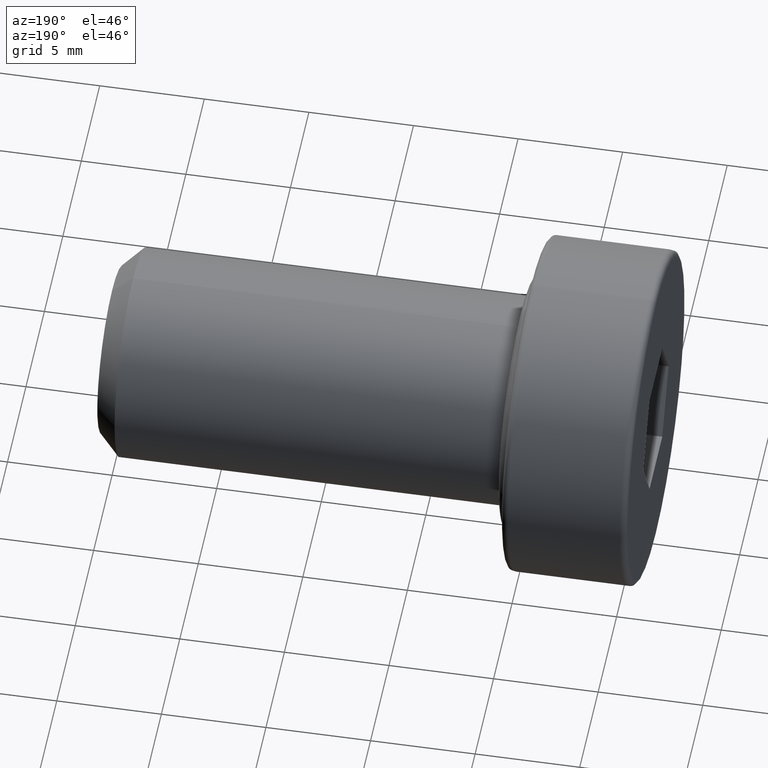
[diagram: clean part render]
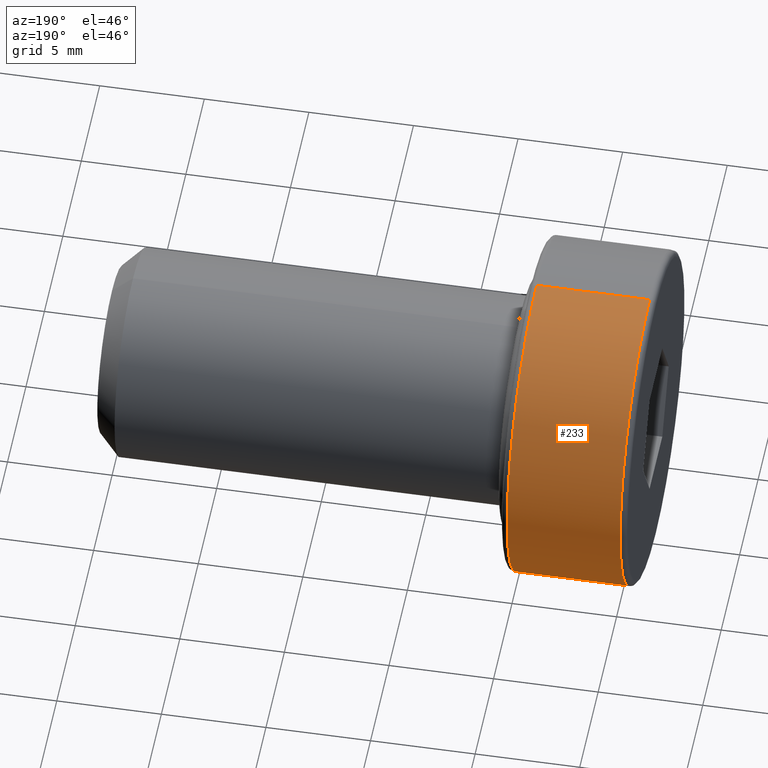
[diagram: same view with one face highlighted and labeled with its STEP entity id]
A machine part, auxiliary view. The second image highlights one B-rep face of the part: STEP entity #233.
In plain terms, the highlighted cylindrical surface (partial cylindrical patch) has radius 8 mm, axis along (1, 0, 0).
Its self-contained STEP definition (entity closure, byte-faithful):
#3 = AXIS2_PLACEMENT_3D ( 'NONE', #296, #431, #243 ) ;
#14 = EDGE_CURVE ( 'NONE', #605, #250, #246, .T. ) ;
#61 = EDGE_LOOP ( 'NONE', ( #397, #714, #544, #568 ) ) ;
#85 = CARTESIAN_POINT ( 'NONE',  ( -0.2999999999999999300, 0.0000000000000000000, -8.000000000000000000 ) ) ;
#106 = CYLINDRICAL_SURFACE ( 'NONE', #390, 8.000000000000000000 ) ;
#148 = CARTESIAN_POINT ( 'NONE',  ( -5.700000000000000200, 9.797174393178825700E-016, 8.000000000000000000 ) ) ;
#159 = EDGE_CURVE ( 'NONE', #300, #605, #348, .T. ) ;
#197 = EDGE_CURVE ( 'NONE', #300, #807, #625, .T. ) ;
#233 = ADVANCED_FACE ( 'NONE', ( #609 ), #106, .T. ) ;
#240 = EDGE_CURVE ( 'NONE', #250, #807, #443, .T. ) ;
#243 = DIRECTION ( 'NONE',  ( 0.0000000000000000000, 0.0000000000000000000, -1.000000000000000000 ) ) ;
#246 = LINE ( 'NONE', #418, #391 ) ;
#250 = VERTEX_POINT ( 'NONE', #488 ) ;
#291 = VECTOR ( 'NONE', #442, 1000.000000000000000 ) ;
#296 = CARTESIAN_POINT ( 'NONE',  ( -5.700000000000000200, 0.0000000000000000000, 0.0000000000000000000 ) ) ;
#300 = VERTEX_POINT ( 'NONE', #695 ) ;
#344 = AXIS2_PLACEMENT_3D ( 'NONE', #808, #553, #614 ) ;
#348 = CIRCLE ( 'NONE', #3, 8.000000000000000000 ) ;
#390 = AXIS2_PLACEMENT_3D ( 'NONE', #743, #753, #615 ) ;
#391 = VECTOR ( 'NONE', #428, 1000.000000000000000 ) ;
#397 = ORIENTED_EDGE ( 'NONE', *, *, #159, .T. ) ;
#418 = CARTESIAN_POINT ( 'NONE',  ( -6.000000000000000000, 9.797174393178825700E-016, 8.000000000000000000 ) ) ;
#428 = DIRECTION ( 'NONE',  ( 1.000000000000000000, 0.0000000000000000000, 0.0000000000000000000 ) ) ;
#431 = DIRECTION ( 'NONE',  ( 1.000000000000000000, 0.0000000000000000000, 0.0000000000000000000 ) ) ;
#442 = DIRECTION ( 'NONE',  ( 1.000000000000000000, 0.0000000000000000000, 0.0000000000000000000 ) ) ;
#443 = CIRCLE ( 'NONE', #344, 8.000000000000000000 ) ;
#488 = CARTESIAN_POINT ( 'NONE',  ( -0.2999999999999999300, 9.797174393178825700E-016, 8.000000000000000000 ) ) ;
#544 = ORIENTED_EDGE ( 'NONE', *, *, #240, .T. ) ;
#553 = DIRECTION ( 'NONE',  ( -1.000000000000000000, -0.0000000000000000000, -0.0000000000000000000 ) ) ;
#568 = ORIENTED_EDGE ( 'NONE', *, *, #197, .F. ) ;
#605 = VERTEX_POINT ( 'NONE', #148 ) ;
#609 = FACE_OUTER_BOUND ( 'NONE', #61, .T. ) ;
#614 = DIRECTION ( 'NONE',  ( 0.0000000000000000000, 0.0000000000000000000, -1.000000000000000000 ) ) ;
#615 = DIRECTION ( 'NONE',  ( 0.0000000000000000000, 0.0000000000000000000, -1.000000000000000000 ) ) ;
#624 = CARTESIAN_POINT ( 'NONE',  ( -6.000000000000000000, 0.0000000000000000000, -8.000000000000000000 ) ) ;
#625 = LINE ( 'NONE', #624, #291 ) ;
#695 = CARTESIAN_POINT ( 'NONE',  ( -5.700000000000000200, 0.0000000000000000000, -8.000000000000000000 ) ) ;
#714 = ORIENTED_EDGE ( 'NONE', *, *, #14, .T. ) ;
#743 = CARTESIAN_POINT ( 'NONE',  ( -6.000000000000000000, 0.0000000000000000000, 0.0000000000000000000 ) ) ;
#753 = DIRECTION ( 'NONE',  ( 1.000000000000000000, 0.0000000000000000000, 0.0000000000000000000 ) ) ;
#807 = VERTEX_POINT ( 'NONE', #85 ) ;
#808 = CARTESIAN_POINT ( 'NONE',  ( -0.2999999999999999300, 0.0000000000000000000, 0.0000000000000000000 ) ) ;